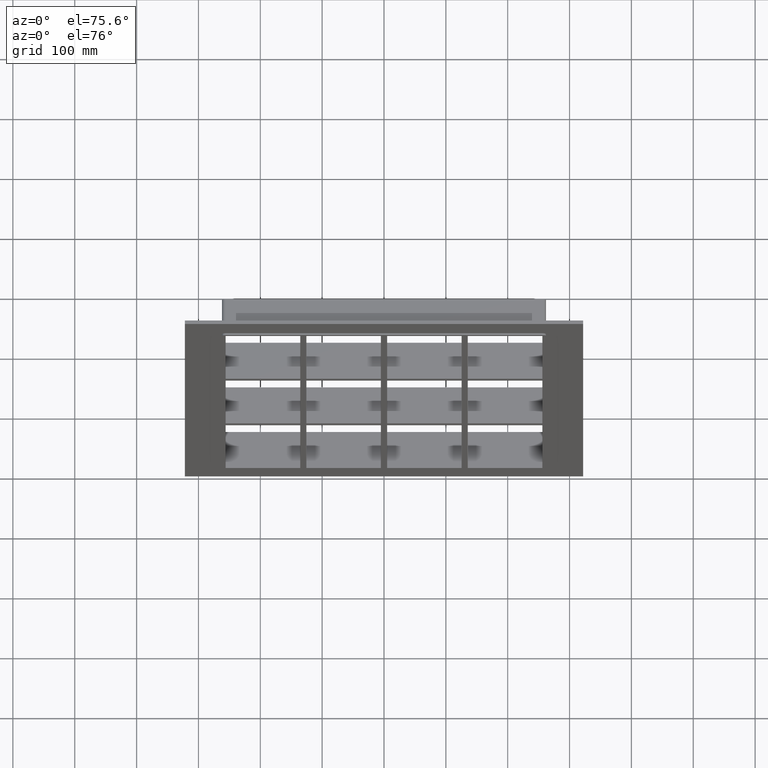
[diagram: clean part render]
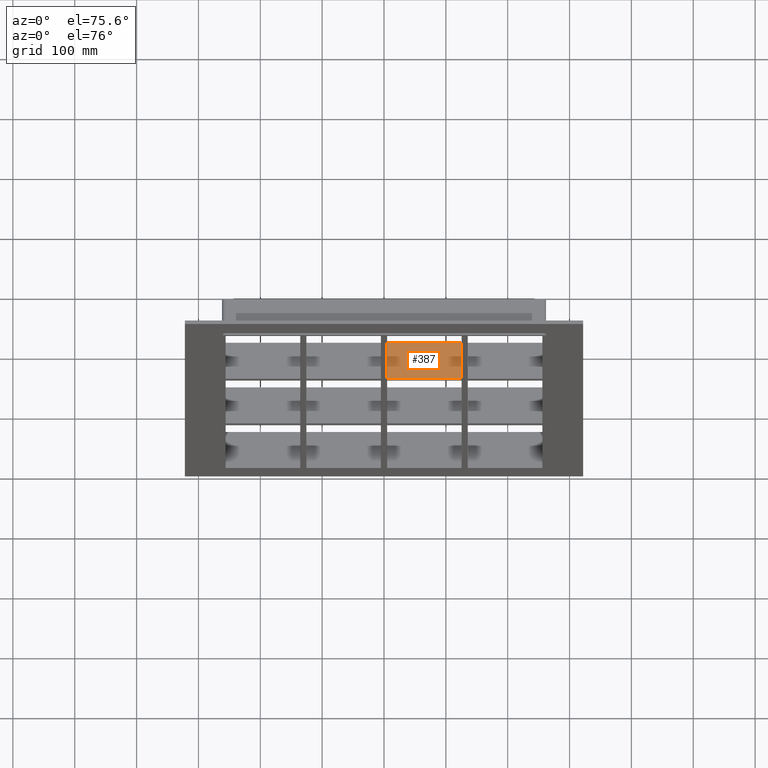
[diagram: same view with one face highlighted and labeled with its STEP entity id]
A machine part, auxiliary view. The second image highlights one B-rep face of the part: STEP entity #387.
In plain terms, the highlighted planar face has unit normal (0, 0, 1).
Its self-contained STEP definition (entity closure, byte-faithful):
#348=CARTESIAN_POINT('',(-255.99999999999969,-3.0,150.99999999999994));
#349=DIRECTION('',(0.0,0.0,1.0));
#350=DIRECTION('',(1.0,0.0,0.0));
#351=AXIS2_PLACEMENT_3D('',#348,#349,#350);
#352=PLANE('',#351);
#353=CARTESIAN_POINT('',(125.49999999999858,57.0,150.99999999999994));
#354=VERTEX_POINT('',#353);
#355=CARTESIAN_POINT('',(125.49999999999858,-3.0,150.99999999999994));
#356=VERTEX_POINT('',#355);
#357=CARTESIAN_POINT('',(125.49999999999861,57.0,150.99999999999994));
#358=DIRECTION('',(0.0,-1.0,0.0));
#359=VECTOR('',#358,60.0);
#360=LINE('',#357,#359);
#361=EDGE_CURVE('',#354,#356,#360,.T.);
#362=ORIENTED_EDGE('',*,*,#361,.F.);
#363=CARTESIAN_POINT('',(5.000000000007283,57.0,150.99999999999994));
#364=VERTEX_POINT('',#363);
#365=CARTESIAN_POINT('',(5.000000000007304,57.0,150.99999999999994));
#366=DIRECTION('',(1.0,0.0,0.0));
#367=VECTOR('',#366,120.4999999999913);
#368=LINE('',#365,#367);
#369=EDGE_CURVE('',#364,#354,#368,.T.);
#370=ORIENTED_EDGE('',*,*,#369,.F.);
#371=CARTESIAN_POINT('',(5.000000000007283,-3.0,150.99999999999994));
#372=VERTEX_POINT('',#371);
#373=CARTESIAN_POINT('',(5.000000000007283,-3.0,150.99999999999994));
#374=DIRECTION('',(0.0,1.0,0.0));
#375=VECTOR('',#374,60.0);
#376=LINE('',#373,#375);
#377=EDGE_CURVE('',#372,#364,#376,.T.);
#378=ORIENTED_EDGE('',*,*,#377,.F.);
#379=CARTESIAN_POINT('',(5.000000000007304,-3.0,150.99999999999994));
#380=DIRECTION('',(1.0,0.0,0.0));
#381=VECTOR('',#380,120.4999999999913);
#382=LINE('',#379,#381);
#383=EDGE_CURVE('',#372,#356,#382,.T.);
#384=ORIENTED_EDGE('',*,*,#383,.T.);
#385=EDGE_LOOP('',(#362,#370,#378,#384));
#386=FACE_OUTER_BOUND('',#385,.T.);
#387=ADVANCED_FACE('',(#386),#352,.T.);